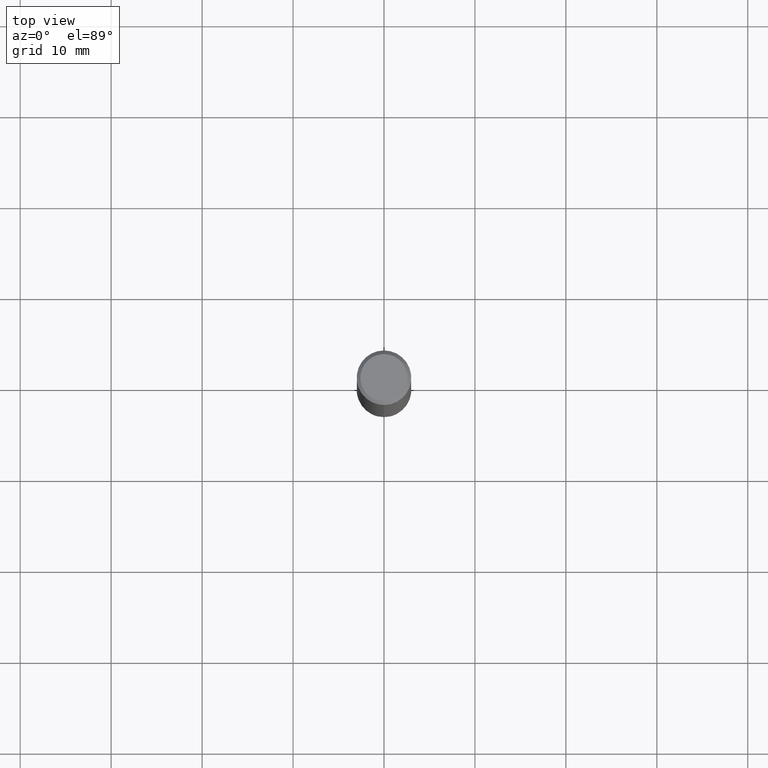
[diagram: clean part render]
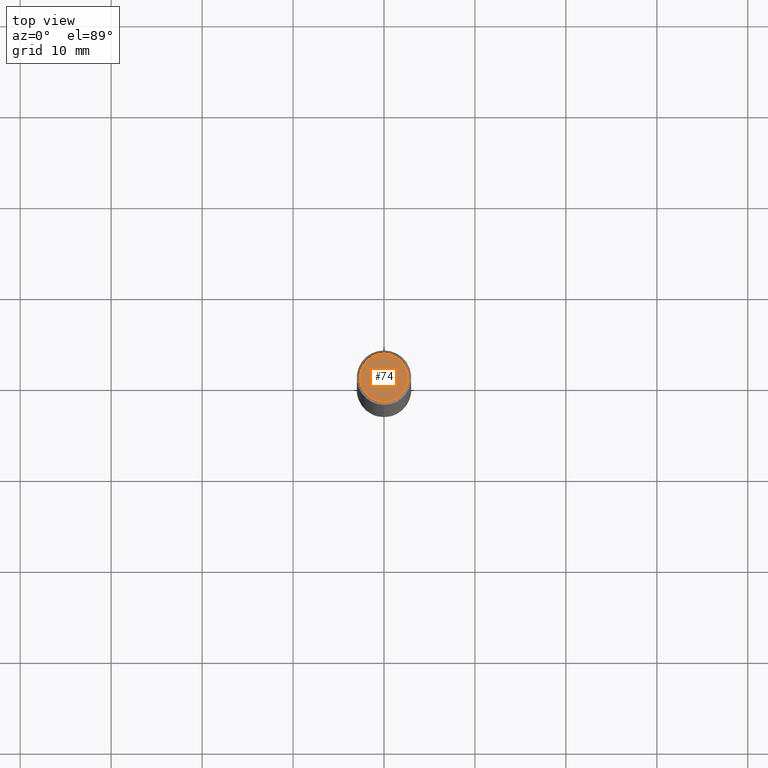
[diagram: same view with one face highlighted and labeled with its STEP entity id]
A machine part, top view. The second image highlights one B-rep face of the part: STEP entity #74.
In plain terms, the highlighted planar face has unit normal (-0, 0, 1).
Its self-contained STEP definition (entity closure, byte-faithful):
#70=VERTEX_POINT('',#162);
#74=ADVANCED_FACE('',(#166),#167,.T.);
#78=EDGE_CURVE('',#70,#120,#171,.T.);
#92=EDGE_CURVE('',#120,#70,#188,.T.);
#120=VERTEX_POINT('',#222);
#162=CARTESIAN_POINT('',(3.18397651993818E-016,-2.6,0.0));
#166=FACE_OUTER_BOUND('',#260,.T.);
#167=PLANE('',#261);
#171=CIRCLE('',#267,2.6);
#188=CIRCLE('',#287,2.6);
#222=CARTESIAN_POINT('',(0.0,2.6,0.0));
#260=EDGE_LOOP('',(#360,#361));
#261=AXIS2_PLACEMENT_3D('',#362,#363,#364);
#267=AXIS2_PLACEMENT_3D('',#368,#369,#370);
#287=AXIS2_PLACEMENT_3D('',#401,#402,#403);
#360=ORIENTED_EDGE('',*,*,#92,.F.);
#361=ORIENTED_EDGE('',*,*,#78,.F.);
#362=CARTESIAN_POINT('',(0.0,1.3,0.0));
#363=DIRECTION('',(-0.0,0.0,1.0));
#364=DIRECTION('',(0.0,-1.0,0.0));
#368=CARTESIAN_POINT('',(0.0,0.0,0.0));
#369=DIRECTION('',(0.0,0.0,-1.0));
#370=DIRECTION('',(0.0,1.0,0.0));
#401=CARTESIAN_POINT('',(0.0,0.0,0.0));
#402=DIRECTION('',(0.0,0.0,-1.0));
#403=DIRECTION('',(0.0,1.0,0.0));